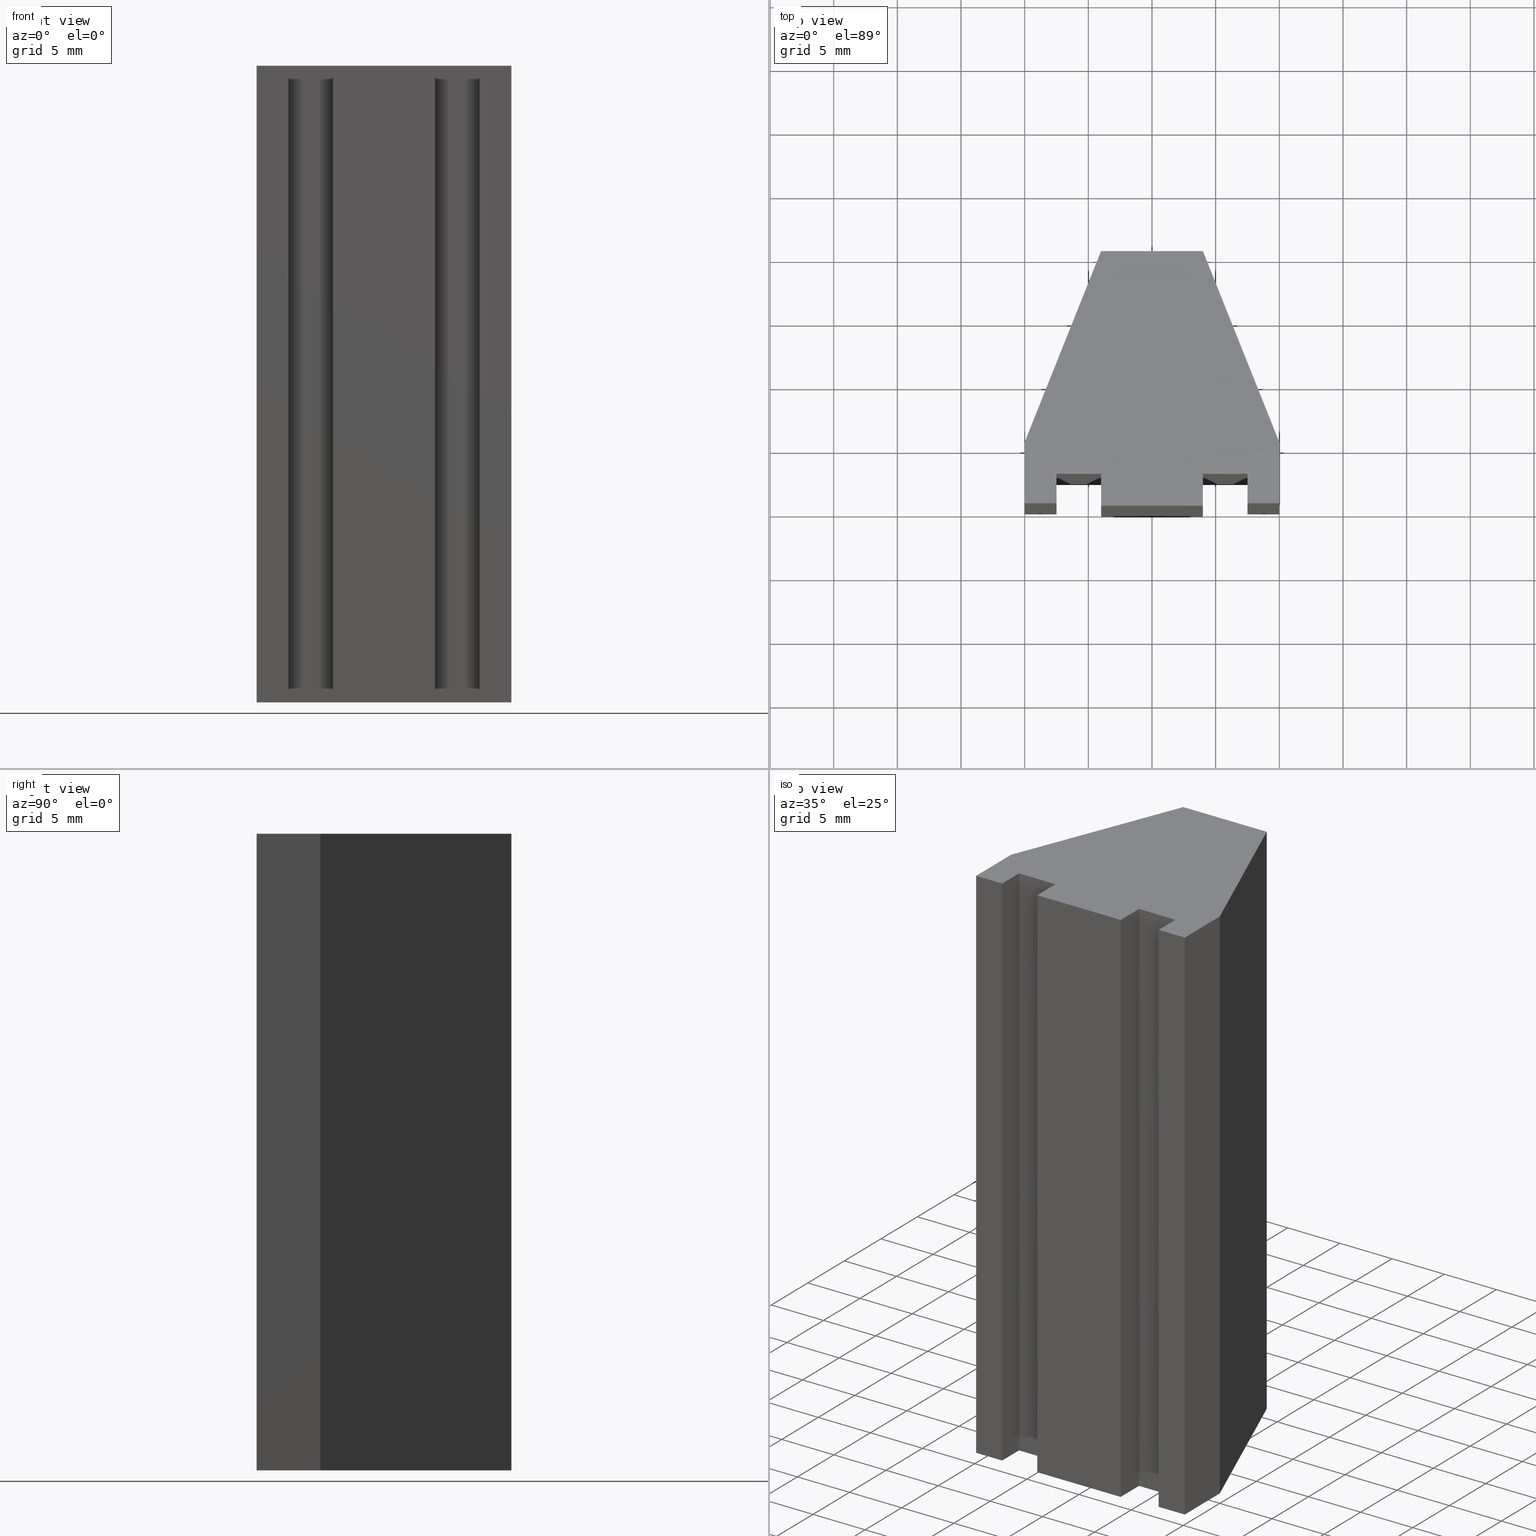
[diagram: canonical four-view strip — front | top / right | iso, engineering-drawing reading convention]
A machine part, canonical four-view strip (front | top / right | iso — engineering-drawing reading convention). The complete STEP part file that produces these views, byte-faithful:
ISO-10303-21;
HEADER;
/* Generated by software containing ST-Developer
 * from STEP Tools, Inc. (www.steptools.com) 
 */

FILE_DESCRIPTION(
/* description */ ('WKZ-0460'),
/* implementation_level */ '2;1');

FILE_NAME(
/* name */ 
'H:\\Eigene Dateien\\CAD Workspace Vault\\CAD\\E_3_Nocken\\E_3_01_Aufs
chwei\X\DFnocke\\06_Trapez\\E_3_01_06_07_00_WKZ-0460.stp',
/* time_stamp */ '2024-06-28T12:50:55+02:00',
/* author */ ('DFischer'),
/* organization */ (''),
/* preprocessor_version */ 'ST-DEVELOPER v18.1',
/* originating_system */ 'Autodesk Inventor 2021',
/* authorisation */ '');

FILE_SCHEMA (('AUTOMOTIVE_DESIGN { 1 0 10303 214 3 1 1 }'));
ENDSEC;

DATA;
#10=MECHANICAL_DESIGN_GEOMETRIC_PRESENTATION_REPRESENTATION('',(#13),#519);
#11=SHAPE_REPRESENTATION_RELATIONSHIP('SRR','None',#526,#12);
#12=ADVANCED_BREP_SHAPE_REPRESENTATION('',(#14),#518);
#13=STYLED_ITEM('',(#535),#14);
#14=MANIFOLD_SOLID_BREP('Volumenk\X\F6rper1',#317);
#15=FACE_OUTER_BOUND('',#31,.T.);
#16=FACE_OUTER_BOUND('',#32,.T.);
#17=FACE_OUTER_BOUND('',#33,.T.);
#18=FACE_OUTER_BOUND('',#34,.T.);
#19=FACE_OUTER_BOUND('',#35,.T.);
#20=FACE_OUTER_BOUND('',#36,.T.);
#21=FACE_OUTER_BOUND('',#37,.T.);
#22=FACE_OUTER_BOUND('',#38,.T.);
#23=FACE_OUTER_BOUND('',#39,.T.);
#24=FACE_OUTER_BOUND('',#40,.T.);
#25=FACE_OUTER_BOUND('',#41,.T.);
#26=FACE_OUTER_BOUND('',#42,.T.);
#27=FACE_OUTER_BOUND('',#43,.T.);
#28=FACE_OUTER_BOUND('',#44,.T.);
#29=FACE_OUTER_BOUND('',#45,.T.);
#30=FACE_OUTER_BOUND('',#46,.T.);
#31=EDGE_LOOP('',(#201,#202,#203,#204));
#32=EDGE_LOOP('',(#205,#206,#207,#208));
#33=EDGE_LOOP('',(#209,#210,#211,#212));
#34=EDGE_LOOP('',(#213,#214,#215,#216));
#35=EDGE_LOOP('',(#217,#218,#219,#220));
#36=EDGE_LOOP('',(#221,#222,#223,#224));
#37=EDGE_LOOP('',(#225,#226,#227,#228));
#38=EDGE_LOOP('',(#229,#230,#231,#232));
#39=EDGE_LOOP('',(#233,#234,#235,#236));
#40=EDGE_LOOP('',(#237,#238,#239,#240));
#41=EDGE_LOOP('',(#241,#242,#243,#244));
#42=EDGE_LOOP('',(#245,#246,#247,#248));
#43=EDGE_LOOP('',(#249,#250,#251,#252));
#44=EDGE_LOOP('',(#253,#254,#255,#256));
#45=EDGE_LOOP('',(#257,#258,#259,#260,#261,#262,#263,#264,#265,#266,#267,
#268,#269,#270));
#46=EDGE_LOOP('',(#271,#272,#273,#274,#275,#276,#277,#278,#279,#280,#281,
#282,#283,#284));
#47=LINE('',#433,#89);
#48=LINE('',#435,#90);
#49=LINE('',#437,#91);
#50=LINE('',#438,#92);
#51=LINE('',#441,#93);
#52=LINE('',#443,#94);
#53=LINE('',#444,#95);
#54=LINE('',#447,#96);
#55=LINE('',#449,#97);
#56=LINE('',#450,#98);
#57=LINE('',#453,#99);
#58=LINE('',#455,#100);
#59=LINE('',#456,#101);
#60=LINE('',#459,#102);
#61=LINE('',#461,#103);
#62=LINE('',#462,#104);
#63=LINE('',#465,#105);
#64=LINE('',#467,#106);
#65=LINE('',#468,#107);
#66=LINE('',#471,#108);
#67=LINE('',#473,#109);
#68=LINE('',#474,#110);
#69=LINE('',#477,#111);
#70=LINE('',#479,#112);
#71=LINE('',#480,#113);
#72=LINE('',#483,#114);
#73=LINE('',#485,#115);
#74=LINE('',#486,#116);
#75=LINE('',#489,#117);
#76=LINE('',#491,#118);
#77=LINE('',#492,#119);
#78=LINE('',#495,#120);
#79=LINE('',#497,#121);
#80=LINE('',#498,#122);
#81=LINE('',#501,#123);
#82=LINE('',#503,#124);
#83=LINE('',#504,#125);
#84=LINE('',#507,#126);
#85=LINE('',#509,#127);
#86=LINE('',#510,#128);
#87=LINE('',#512,#129);
#88=LINE('',#513,#130);
#89=VECTOR('',#357,10.);
#90=VECTOR('',#358,10.);
#91=VECTOR('',#359,10.);
#92=VECTOR('',#360,10.);
#93=VECTOR('',#363,10.);
#94=VECTOR('',#364,10.);
#95=VECTOR('',#365,10.);
#96=VECTOR('',#368,10.);
#97=VECTOR('',#369,10.);
#98=VECTOR('',#370,10.);
#99=VECTOR('',#373,10.);
#100=VECTOR('',#374,10.);
#101=VECTOR('',#375,10.);
#102=VECTOR('',#378,10.);
#103=VECTOR('',#379,10.);
#104=VECTOR('',#380,10.);
#105=VECTOR('',#383,10.);
#106=VECTOR('',#384,10.);
#107=VECTOR('',#385,10.);
#108=VECTOR('',#388,10.);
#109=VECTOR('',#389,10.);
#110=VECTOR('',#390,10.);
#111=VECTOR('',#393,10.);
#112=VECTOR('',#394,10.);
#113=VECTOR('',#395,10.);
#114=VECTOR('',#398,10.);
#115=VECTOR('',#399,10.);
#116=VECTOR('',#400,10.);
#117=VECTOR('',#403,10.);
#118=VECTOR('',#404,10.);
#119=VECTOR('',#405,10.);
#120=VECTOR('',#408,10.);
#121=VECTOR('',#409,10.);
#122=VECTOR('',#410,10.);
#123=VECTOR('',#413,10.);
#124=VECTOR('',#414,10.);
#125=VECTOR('',#415,10.);
#126=VECTOR('',#418,10.);
#127=VECTOR('',#419,10.);
#128=VECTOR('',#420,10.);
#129=VECTOR('',#423,10.);
#130=VECTOR('',#424,10.);
#131=VERTEX_POINT('',#431);
#132=VERTEX_POINT('',#432);
#133=VERTEX_POINT('',#434);
#134=VERTEX_POINT('',#436);
#135=VERTEX_POINT('',#440);
#136=VERTEX_POINT('',#442);
#137=VERTEX_POINT('',#446);
#138=VERTEX_POINT('',#448);
#139=VERTEX_POINT('',#452);
#140=VERTEX_POINT('',#454);
#141=VERTEX_POINT('',#458);
#142=VERTEX_POINT('',#460);
#143=VERTEX_POINT('',#464);
#144=VERTEX_POINT('',#466);
#145=VERTEX_POINT('',#470);
#146=VERTEX_POINT('',#472);
#147=VERTEX_POINT('',#476);
#148=VERTEX_POINT('',#478);
#149=VERTEX_POINT('',#482);
#150=VERTEX_POINT('',#484);
#151=VERTEX_POINT('',#488);
#152=VERTEX_POINT('',#490);
#153=VERTEX_POINT('',#494);
#154=VERTEX_POINT('',#496);
#155=VERTEX_POINT('',#500);
#156=VERTEX_POINT('',#502);
#157=VERTEX_POINT('',#506);
#158=VERTEX_POINT('',#508);
#159=EDGE_CURVE('',#131,#132,#47,.T.);
#160=EDGE_CURVE('',#131,#133,#48,.T.);
#161=EDGE_CURVE('',#134,#133,#49,.T.);
#162=EDGE_CURVE('',#132,#134,#50,.T.);
#163=EDGE_CURVE('',#132,#135,#51,.T.);
#164=EDGE_CURVE('',#136,#134,#52,.T.);
#165=EDGE_CURVE('',#135,#136,#53,.T.);
#166=EDGE_CURVE('',#135,#137,#54,.T.);
#167=EDGE_CURVE('',#138,#136,#55,.T.);
#168=EDGE_CURVE('',#137,#138,#56,.T.);
#169=EDGE_CURVE('',#137,#139,#57,.T.);
#170=EDGE_CURVE('',#140,#138,#58,.T.);
#171=EDGE_CURVE('',#139,#140,#59,.T.);
#172=EDGE_CURVE('',#139,#141,#60,.T.);
#173=EDGE_CURVE('',#142,#140,#61,.T.);
#174=EDGE_CURVE('',#141,#142,#62,.T.);
#175=EDGE_CURVE('',#141,#143,#63,.T.);
#176=EDGE_CURVE('',#144,#142,#64,.T.);
#177=EDGE_CURVE('',#143,#144,#65,.T.);
#178=EDGE_CURVE('',#143,#145,#66,.T.);
#179=EDGE_CURVE('',#146,#144,#67,.T.);
#180=EDGE_CURVE('',#145,#146,#68,.T.);
#181=EDGE_CURVE('',#145,#147,#69,.T.);
#182=EDGE_CURVE('',#148,#146,#70,.T.);
#183=EDGE_CURVE('',#147,#148,#71,.T.);
#184=EDGE_CURVE('',#147,#149,#72,.T.);
#185=EDGE_CURVE('',#150,#148,#73,.T.);
#186=EDGE_CURVE('',#149,#150,#74,.T.);
#187=EDGE_CURVE('',#149,#151,#75,.T.);
#188=EDGE_CURVE('',#152,#150,#76,.T.);
#189=EDGE_CURVE('',#151,#152,#77,.T.);
#190=EDGE_CURVE('',#151,#153,#78,.T.);
#191=EDGE_CURVE('',#154,#152,#79,.T.);
#192=EDGE_CURVE('',#153,#154,#80,.T.);
#193=EDGE_CURVE('',#153,#155,#81,.T.);
#194=EDGE_CURVE('',#156,#154,#82,.T.);
#195=EDGE_CURVE('',#155,#156,#83,.T.);
#196=EDGE_CURVE('',#155,#157,#84,.T.);
#197=EDGE_CURVE('',#158,#156,#85,.T.);
#198=EDGE_CURVE('',#157,#158,#86,.T.);
#199=EDGE_CURVE('',#157,#131,#87,.T.);
#200=EDGE_CURVE('',#133,#158,#88,.T.);
#201=ORIENTED_EDGE('',*,*,#159,.F.);
#202=ORIENTED_EDGE('',*,*,#160,.T.);
#203=ORIENTED_EDGE('',*,*,#161,.F.);
#204=ORIENTED_EDGE('',*,*,#162,.F.);
#205=ORIENTED_EDGE('',*,*,#163,.F.);
#206=ORIENTED_EDGE('',*,*,#162,.T.);
#207=ORIENTED_EDGE('',*,*,#164,.F.);
#208=ORIENTED_EDGE('',*,*,#165,.F.);
#209=ORIENTED_EDGE('',*,*,#166,.F.);
#210=ORIENTED_EDGE('',*,*,#165,.T.);
#211=ORIENTED_EDGE('',*,*,#167,.F.);
#212=ORIENTED_EDGE('',*,*,#168,.F.);
#213=ORIENTED_EDGE('',*,*,#169,.F.);
#214=ORIENTED_EDGE('',*,*,#168,.T.);
#215=ORIENTED_EDGE('',*,*,#170,.F.);
#216=ORIENTED_EDGE('',*,*,#171,.F.);
#217=ORIENTED_EDGE('',*,*,#172,.F.);
#218=ORIENTED_EDGE('',*,*,#171,.T.);
#219=ORIENTED_EDGE('',*,*,#173,.F.);
#220=ORIENTED_EDGE('',*,*,#174,.F.);
#221=ORIENTED_EDGE('',*,*,#175,.F.);
#222=ORIENTED_EDGE('',*,*,#174,.T.);
#223=ORIENTED_EDGE('',*,*,#176,.F.);
#224=ORIENTED_EDGE('',*,*,#177,.F.);
#225=ORIENTED_EDGE('',*,*,#178,.F.);
#226=ORIENTED_EDGE('',*,*,#177,.T.);
#227=ORIENTED_EDGE('',*,*,#179,.F.);
#228=ORIENTED_EDGE('',*,*,#180,.F.);
#229=ORIENTED_EDGE('',*,*,#181,.F.);
#230=ORIENTED_EDGE('',*,*,#180,.T.);
#231=ORIENTED_EDGE('',*,*,#182,.F.);
#232=ORIENTED_EDGE('',*,*,#183,.F.);
#233=ORIENTED_EDGE('',*,*,#184,.F.);
#234=ORIENTED_EDGE('',*,*,#183,.T.);
#235=ORIENTED_EDGE('',*,*,#185,.F.);
#236=ORIENTED_EDGE('',*,*,#186,.F.);
#237=ORIENTED_EDGE('',*,*,#187,.F.);
#238=ORIENTED_EDGE('',*,*,#186,.T.);
#239=ORIENTED_EDGE('',*,*,#188,.F.);
#240=ORIENTED_EDGE('',*,*,#189,.F.);
#241=ORIENTED_EDGE('',*,*,#190,.F.);
#242=ORIENTED_EDGE('',*,*,#189,.T.);
#243=ORIENTED_EDGE('',*,*,#191,.F.);
#244=ORIENTED_EDGE('',*,*,#192,.F.);
#245=ORIENTED_EDGE('',*,*,#193,.F.);
#246=ORIENTED_EDGE('',*,*,#192,.T.);
#247=ORIENTED_EDGE('',*,*,#194,.F.);
#248=ORIENTED_EDGE('',*,*,#195,.F.);
#249=ORIENTED_EDGE('',*,*,#196,.F.);
#250=ORIENTED_EDGE('',*,*,#195,.T.);
#251=ORIENTED_EDGE('',*,*,#197,.F.);
#252=ORIENTED_EDGE('',*,*,#198,.F.);
#253=ORIENTED_EDGE('',*,*,#199,.F.);
#254=ORIENTED_EDGE('',*,*,#198,.T.);
#255=ORIENTED_EDGE('',*,*,#200,.F.);
#256=ORIENTED_EDGE('',*,*,#160,.F.);
#257=ORIENTED_EDGE('',*,*,#199,.T.);
#258=ORIENTED_EDGE('',*,*,#159,.T.);
#259=ORIENTED_EDGE('',*,*,#163,.T.);
#260=ORIENTED_EDGE('',*,*,#166,.T.);
#261=ORIENTED_EDGE('',*,*,#169,.T.);
#262=ORIENTED_EDGE('',*,*,#172,.T.);
#263=ORIENTED_EDGE('',*,*,#175,.T.);
#264=ORIENTED_EDGE('',*,*,#178,.T.);
#265=ORIENTED_EDGE('',*,*,#181,.T.);
#266=ORIENTED_EDGE('',*,*,#184,.T.);
#267=ORIENTED_EDGE('',*,*,#187,.T.);
#268=ORIENTED_EDGE('',*,*,#190,.T.);
#269=ORIENTED_EDGE('',*,*,#193,.T.);
#270=ORIENTED_EDGE('',*,*,#196,.T.);
#271=ORIENTED_EDGE('',*,*,#200,.T.);
#272=ORIENTED_EDGE('',*,*,#197,.T.);
#273=ORIENTED_EDGE('',*,*,#194,.T.);
#274=ORIENTED_EDGE('',*,*,#191,.T.);
#275=ORIENTED_EDGE('',*,*,#188,.T.);
#276=ORIENTED_EDGE('',*,*,#185,.T.);
#277=ORIENTED_EDGE('',*,*,#182,.T.);
#278=ORIENTED_EDGE('',*,*,#179,.T.);
#279=ORIENTED_EDGE('',*,*,#176,.T.);
#280=ORIENTED_EDGE('',*,*,#173,.T.);
#281=ORIENTED_EDGE('',*,*,#170,.T.);
#282=ORIENTED_EDGE('',*,*,#167,.T.);
#283=ORIENTED_EDGE('',*,*,#164,.T.);
#284=ORIENTED_EDGE('',*,*,#161,.T.);
#285=PLANE('',#337);
#286=PLANE('',#338);
#287=PLANE('',#339);
#288=PLANE('',#340);
#289=PLANE('',#341);
#290=PLANE('',#342);
#291=PLANE('',#343);
#292=PLANE('',#344);
#293=PLANE('',#345);
#294=PLANE('',#346);
#295=PLANE('',#347);
#296=PLANE('',#348);
#297=PLANE('',#349);
#298=PLANE('',#350);
#299=PLANE('',#351);
#300=PLANE('',#352);
#301=ADVANCED_FACE('',(#15),#285,.T.);
#302=ADVANCED_FACE('',(#16),#286,.T.);
#303=ADVANCED_FACE('',(#17),#287,.T.);
#304=ADVANCED_FACE('',(#18),#288,.T.);
#305=ADVANCED_FACE('',(#19),#289,.T.);
#306=ADVANCED_FACE('',(#20),#290,.T.);
#307=ADVANCED_FACE('',(#21),#291,.T.);
#308=ADVANCED_FACE('',(#22),#292,.T.);
#309=ADVANCED_FACE('',(#23),#293,.T.);
#310=ADVANCED_FACE('',(#24),#294,.T.);
#311=ADVANCED_FACE('',(#25),#295,.T.);
#312=ADVANCED_FACE('',(#26),#296,.T.);
#313=ADVANCED_FACE('',(#27),#297,.T.);
#314=ADVANCED_FACE('',(#28),#298,.T.);
#315=ADVANCED_FACE('',(#29),#299,.T.);
#316=ADVANCED_FACE('',(#30),#300,.T.);
#317=CLOSED_SHELL('',(#301,#302,#303,#304,#305,#306,#307,#308,#309,#310,
#311,#312,#313,#314,#315,#316));
#318=DERIVED_UNIT_ELEMENT(#320,1.);
#319=DERIVED_UNIT_ELEMENT(#521,3.);
#320=(
MASS_UNIT()
NAMED_UNIT(*)
SI_UNIT($,.GRAM.)
);
#321=DERIVED_UNIT((#318,#319));
#322=MEASURE_REPRESENTATION_ITEM('density measure',
POSITIVE_RATIO_MEASURE(1.),#321);
#323=PROPERTY_DEFINITION_REPRESENTATION(#328,#325);
#324=PROPERTY_DEFINITION_REPRESENTATION(#329,#326);
#325=REPRESENTATION('material name',(#327),#518);
#326=REPRESENTATION('density',(#322),#518);
#327=DESCRIPTIVE_REPRESENTATION_ITEM('Generisch','Generisch');
#328=PROPERTY_DEFINITION('material property','material name',#528);
#329=PROPERTY_DEFINITION('material property','density of part',#528);
#330=DATE_TIME_ROLE('creation_date');
#331=APPLIED_DATE_AND_TIME_ASSIGNMENT(#332,#330,(#528));
#332=DATE_AND_TIME(#333,#334);
#333=CALENDAR_DATE(2024,6,5);
#334=LOCAL_TIME(0,0,0.,#335);
#335=COORDINATED_UNIVERSAL_TIME_OFFSET(0,0,.BEHIND.);
#336=AXIS2_PLACEMENT_3D('placement',#429,#353,#354);
#337=AXIS2_PLACEMENT_3D('',#430,#355,#356);
#338=AXIS2_PLACEMENT_3D('',#439,#361,#362);
#339=AXIS2_PLACEMENT_3D('',#445,#366,#367);
#340=AXIS2_PLACEMENT_3D('',#451,#371,#372);
#341=AXIS2_PLACEMENT_3D('',#457,#376,#377);
#342=AXIS2_PLACEMENT_3D('',#463,#381,#382);
#343=AXIS2_PLACEMENT_3D('',#469,#386,#387);
#344=AXIS2_PLACEMENT_3D('',#475,#391,#392);
#345=AXIS2_PLACEMENT_3D('',#481,#396,#397);
#346=AXIS2_PLACEMENT_3D('',#487,#401,#402);
#347=AXIS2_PLACEMENT_3D('',#493,#406,#407);
#348=AXIS2_PLACEMENT_3D('',#499,#411,#412);
#349=AXIS2_PLACEMENT_3D('',#505,#416,#417);
#350=AXIS2_PLACEMENT_3D('',#511,#421,#422);
#351=AXIS2_PLACEMENT_3D('',#514,#425,#426);
#352=AXIS2_PLACEMENT_3D('',#515,#427,#428);
#353=DIRECTION('axis',(0.,0.,1.));
#354=DIRECTION('refdir',(1.,0.,0.));
#355=DIRECTION('center_axis',(4.44089209850063E-16,-1.,0.));
#356=DIRECTION('ref_axis',(-1.,-4.44089209850063E-16,0.));
#357=DIRECTION('',(1.,4.44089209850063E-16,0.));
#358=DIRECTION('',(0.,0.,-1.));
#359=DIRECTION('',(-1.,-4.44089209850063E-16,0.));
#360=DIRECTION('',(0.,0.,-1.));
#361=DIRECTION('center_axis',(1.,0.,0.));
#362=DIRECTION('ref_axis',(0.,-1.,0.));
#363=DIRECTION('',(0.,1.,0.));
#364=DIRECTION('',(0.,-1.,0.));
#365=DIRECTION('',(0.,0.,-1.));
#366=DIRECTION('center_axis',(1.58603289232166E-16,-1.,0.));
#367=DIRECTION('ref_axis',(-1.,-1.58603289232166E-16,0.));
#368=DIRECTION('',(1.,1.58603289232166E-16,0.));
#369=DIRECTION('',(-1.,-1.58603289232166E-16,0.));
#370=DIRECTION('',(0.,0.,-1.));
#371=DIRECTION('center_axis',(-1.,0.,0.));
#372=DIRECTION('ref_axis',(0.,1.,0.));
#373=DIRECTION('',(0.,-1.,0.));
#374=DIRECTION('',(0.,1.,0.));
#375=DIRECTION('',(0.,0.,-1.));
#376=DIRECTION('center_axis',(1.38777878078145E-16,-1.,0.));
#377=DIRECTION('ref_axis',(-1.,-1.38777878078145E-16,0.));
#378=DIRECTION('',(1.,1.38777878078145E-16,0.));
#379=DIRECTION('',(-1.,-1.38777878078145E-16,0.));
#380=DIRECTION('',(0.,0.,-1.));
#381=DIRECTION('center_axis',(1.,-1.4210854715202E-14,0.));
#382=DIRECTION('ref_axis',(-1.4210854715202E-14,-1.,0.));
#383=DIRECTION('',(1.4210854715202E-14,1.,0.));
#384=DIRECTION('',(-1.4210854715202E-14,-1.,0.));
#385=DIRECTION('',(0.,0.,-1.));
#386=DIRECTION('center_axis',(0.,-1.,0.));
#387=DIRECTION('ref_axis',(-1.,0.,0.));
#388=DIRECTION('',(1.,0.,0.));
#389=DIRECTION('',(-1.,0.,0.));
#390=DIRECTION('',(0.,0.,-1.));
#391=DIRECTION('center_axis',(-1.,7.72329060608804E-15,0.));
#392=DIRECTION('ref_axis',(7.72329060608804E-15,1.,0.));
#393=DIRECTION('',(-7.72329060608804E-15,-1.,0.));
#394=DIRECTION('',(7.72329060608804E-15,1.,0.));
#395=DIRECTION('',(0.,0.,-1.));
#396=DIRECTION('center_axis',(0.,-1.,0.));
#397=DIRECTION('ref_axis',(-1.,0.,0.));
#398=DIRECTION('',(1.,0.,0.));
#399=DIRECTION('',(-1.,0.,0.));
#400=DIRECTION('',(0.,0.,-1.));
#401=DIRECTION('center_axis',(1.,-4.62592926927149E-16,0.));
#402=DIRECTION('ref_axis',(-4.62592926927149E-16,-1.,0.));
#403=DIRECTION('',(4.62592926927149E-16,1.,0.));
#404=DIRECTION('',(-4.62592926927149E-16,-1.,0.));
#405=DIRECTION('',(0.,0.,-1.));
#406=DIRECTION('center_axis',(0.928476690885259,0.371390676354104,0.));
#407=DIRECTION('ref_axis',(0.371390676354104,-0.928476690885259,0.));
#408=DIRECTION('',(-0.371390676354104,0.928476690885259,0.));
#409=DIRECTION('',(0.371390676354104,-0.928476690885259,0.));
#410=DIRECTION('',(0.,0.,-1.));
#411=DIRECTION('center_axis',(-1.11022302462516E-15,1.,0.));
#412=DIRECTION('ref_axis',(1.,1.11022302462516E-15,0.));
#413=DIRECTION('',(-1.,-1.11022302462516E-15,0.));
#414=DIRECTION('',(1.,1.11022302462516E-15,0.));
#415=DIRECTION('',(0.,0.,-1.));
#416=DIRECTION('center_axis',(-0.928476690885259,0.371390676354104,0.));
#417=DIRECTION('ref_axis',(0.371390676354104,0.928476690885259,0.));
#418=DIRECTION('',(-0.371390676354104,-0.928476690885259,0.));
#419=DIRECTION('',(0.371390676354104,0.928476690885259,0.));
#420=DIRECTION('',(0.,0.,-1.));
#421=DIRECTION('center_axis',(-1.,-2.31296463463574E-16,0.));
#422=DIRECTION('ref_axis',(-2.31296463463574E-16,1.,0.));
#423=DIRECTION('',(2.31296463463574E-16,-1.,0.));
#424=DIRECTION('',(-2.31296463463574E-16,1.,0.));
#425=DIRECTION('center_axis',(0.,0.,1.));
#426=DIRECTION('ref_axis',(1.,0.,0.));
#427=DIRECTION('center_axis',(0.,0.,-1.));
#428=DIRECTION('ref_axis',(-1.,0.,0.));
#429=CARTESIAN_POINT('',(0.,0.,0.));
#430=CARTESIAN_POINT('Origin',(-7.49999999999998,0.200000000000001,0.));
#431=CARTESIAN_POINT('',(-9.99999999999998,0.2,0.));
#432=CARTESIAN_POINT('',(-7.49999999999998,0.200000000000001,0.));
#433=CARTESIAN_POINT('',(-9.99999999999998,0.2,0.));
#434=CARTESIAN_POINT('',(-9.99999999999998,0.2,-50.));
#435=CARTESIAN_POINT('',(-9.99999999999998,0.2,0.));
#436=CARTESIAN_POINT('',(-7.49999999999998,0.200000000000001,-50.));
#437=CARTESIAN_POINT('',(-9.99999999999998,0.2,-50.));
#438=CARTESIAN_POINT('',(-7.49999999999998,0.200000000000001,0.));
#439=CARTESIAN_POINT('Origin',(-7.49999999999998,2.5,0.));
#440=CARTESIAN_POINT('',(-7.49999999999998,2.5,0.));
#441=CARTESIAN_POINT('',(-7.49999999999998,0.200000000000001,0.));
#442=CARTESIAN_POINT('',(-7.49999999999998,2.5,-50.));
#443=CARTESIAN_POINT('',(-7.49999999999998,0.200000000000001,-50.));
#444=CARTESIAN_POINT('',(-7.49999999999998,2.5,0.));
#445=CARTESIAN_POINT('Origin',(-4.,2.5,0.));
#446=CARTESIAN_POINT('',(-4.,2.5,0.));
#447=CARTESIAN_POINT('',(-7.49999999999998,2.5,0.));
#448=CARTESIAN_POINT('',(-4.,2.5,-50.));
#449=CARTESIAN_POINT('',(-7.49999999999998,2.5,-50.));
#450=CARTESIAN_POINT('',(-4.,2.5,0.));
#451=CARTESIAN_POINT('Origin',(-4.,0.,0.));
#452=CARTESIAN_POINT('',(-4.,0.,0.));
#453=CARTESIAN_POINT('',(-4.,2.5,0.));
#454=CARTESIAN_POINT('',(-4.,0.,-50.));
#455=CARTESIAN_POINT('',(-4.,2.5,-50.));
#456=CARTESIAN_POINT('',(-4.,0.,0.));
#457=CARTESIAN_POINT('Origin',(4.,1.11022302462516E-15,0.));
#458=CARTESIAN_POINT('',(4.,1.11022302462516E-15,0.));
#459=CARTESIAN_POINT('',(-4.,0.,0.));
#460=CARTESIAN_POINT('',(4.,1.11022302462516E-15,-50.));
#461=CARTESIAN_POINT('',(-4.,0.,-50.));
#462=CARTESIAN_POINT('',(4.,1.11022302462516E-15,0.));
#463=CARTESIAN_POINT('Origin',(4.00000000000003,2.5,0.));
#464=CARTESIAN_POINT('',(4.00000000000003,2.5,0.));
#465=CARTESIAN_POINT('',(4.,1.11022302462516E-15,0.));
#466=CARTESIAN_POINT('',(4.00000000000003,2.5,-50.));
#467=CARTESIAN_POINT('',(4.,1.11022302462516E-15,-50.));
#468=CARTESIAN_POINT('',(4.00000000000003,2.5,0.));
#469=CARTESIAN_POINT('Origin',(7.50000000000002,2.5,0.));
#470=CARTESIAN_POINT('',(7.50000000000002,2.5,0.));
#471=CARTESIAN_POINT('',(4.00000000000003,2.5,0.));
#472=CARTESIAN_POINT('',(7.50000000000002,2.5,-50.));
#473=CARTESIAN_POINT('',(4.00000000000003,2.5,-50.));
#474=CARTESIAN_POINT('',(7.50000000000002,2.5,0.));
#475=CARTESIAN_POINT('Origin',(7.5,0.200000000000002,0.));
#476=CARTESIAN_POINT('',(7.5,0.200000000000002,0.));
#477=CARTESIAN_POINT('',(7.50000000000002,2.5,0.));
#478=CARTESIAN_POINT('',(7.5,0.200000000000002,-50.));
#479=CARTESIAN_POINT('',(7.50000000000002,2.5,-50.));
#480=CARTESIAN_POINT('',(7.5,0.200000000000002,0.));
#481=CARTESIAN_POINT('Origin',(10.,0.200000000000002,0.));
#482=CARTESIAN_POINT('',(10.,0.200000000000002,0.));
#483=CARTESIAN_POINT('',(7.5,0.200000000000002,0.));
#484=CARTESIAN_POINT('',(10.,0.200000000000002,-50.));
#485=CARTESIAN_POINT('',(7.5,0.200000000000002,-50.));
#486=CARTESIAN_POINT('',(10.,0.200000000000002,0.));
#487=CARTESIAN_POINT('Origin',(10.,5.,0.));
#488=CARTESIAN_POINT('',(10.,5.,0.));
#489=CARTESIAN_POINT('',(10.,0.200000000000002,0.));
#490=CARTESIAN_POINT('',(10.,5.,-50.));
#491=CARTESIAN_POINT('',(10.,0.200000000000002,-50.));
#492=CARTESIAN_POINT('',(10.,5.,0.));
#493=CARTESIAN_POINT('Origin',(4.00000000000001,20.,0.));
#494=CARTESIAN_POINT('',(4.00000000000002,20.,0.));
#495=CARTESIAN_POINT('',(10.,5.,0.));
#496=CARTESIAN_POINT('',(4.00000000000002,20.,-50.));
#497=CARTESIAN_POINT('',(10.,5.,-50.));
#498=CARTESIAN_POINT('',(4.00000000000002,20.,0.));
#499=CARTESIAN_POINT('Origin',(-3.99999999999998,20.,0.));
#500=CARTESIAN_POINT('',(-3.99999999999998,20.,0.));
#501=CARTESIAN_POINT('',(4.00000000000002,20.,0.));
#502=CARTESIAN_POINT('',(-3.99999999999998,20.,-50.));
#503=CARTESIAN_POINT('',(4.00000000000002,20.,-50.));
#504=CARTESIAN_POINT('',(-3.99999999999998,20.,0.));
#505=CARTESIAN_POINT('Origin',(-9.99999999999999,5.,0.));
#506=CARTESIAN_POINT('',(-9.99999999999998,5.,0.));
#507=CARTESIAN_POINT('',(-3.99999999999998,20.,0.));
#508=CARTESIAN_POINT('',(-9.99999999999998,5.,-50.));
#509=CARTESIAN_POINT('',(-3.99999999999998,20.,-50.));
#510=CARTESIAN_POINT('',(-9.99999999999998,5.,0.));
#511=CARTESIAN_POINT('Origin',(-9.99999999999998,0.2,0.));
#512=CARTESIAN_POINT('',(-9.99999999999998,5.,0.));
#513=CARTESIAN_POINT('',(-9.99999999999998,5.,-50.));
#514=CARTESIAN_POINT('Origin',(1.60982338570648E-14,10.,0.));
#515=CARTESIAN_POINT('Origin',(1.66533453693773E-14,10.,-50.));
#516=UNCERTAINTY_MEASURE_WITH_UNIT(LENGTH_MEASURE(0.01),#520,
'DISTANCE_ACCURACY_VALUE',
'Maximum model space distance between geometric entities at asserted c
onnectivities');
#517=UNCERTAINTY_MEASURE_WITH_UNIT(LENGTH_MEASURE(0.01),#520,
'DISTANCE_ACCURACY_VALUE',
'Maximum model space distance between geometric entities at asserted c
onnectivities');
#518=(
GEOMETRIC_REPRESENTATION_CONTEXT(3)
GLOBAL_UNCERTAINTY_ASSIGNED_CONTEXT((#516))
GLOBAL_UNIT_ASSIGNED_CONTEXT((#520,#522,#523))
REPRESENTATION_CONTEXT('','3D')
);
#519=(
GEOMETRIC_REPRESENTATION_CONTEXT(3)
GLOBAL_UNCERTAINTY_ASSIGNED_CONTEXT((#517))
GLOBAL_UNIT_ASSIGNED_CONTEXT((#520,#522,#523))
REPRESENTATION_CONTEXT('','3D')
);
#520=(
LENGTH_UNIT()
NAMED_UNIT(*)
SI_UNIT(.MILLI.,.METRE.)
);
#521=(
LENGTH_UNIT()
NAMED_UNIT(*)
SI_UNIT(.CENTI.,.METRE.)
);
#522=(
NAMED_UNIT(*)
PLANE_ANGLE_UNIT()
SI_UNIT($,.RADIAN.)
);
#523=(
NAMED_UNIT(*)
SI_UNIT($,.STERADIAN.)
SOLID_ANGLE_UNIT()
);
#524=SHAPE_DEFINITION_REPRESENTATION(#525,#526);
#525=PRODUCT_DEFINITION_SHAPE('',$,#528);
#526=SHAPE_REPRESENTATION('',(#336),#518);
#527=PRODUCT_DEFINITION_CONTEXT('part definition',#532,'design');
#528=PRODUCT_DEFINITION('E_3_01_06_07_00_WKZ-0460',
'E_3_01_06_07_00_WKZ-0460',#529,#527);
#529=PRODUCT_DEFINITION_FORMATION('',$,#534);
#530=PRODUCT_RELATED_PRODUCT_CATEGORY('E_3_01_06_07_00_WKZ-0460',
'E_3_01_06_07_00_WKZ-0460',(#534));
#531=APPLICATION_PROTOCOL_DEFINITION('international standard',
'automotive_design',2009,#532);
#532=APPLICATION_CONTEXT(
'Core Data for Automotive Mechanical Design Process');
#533=PRODUCT_CONTEXT('part definition',#532,'mechanical');
#534=PRODUCT('E_3_01_06_07_00_WKZ-0460','E_3_01_06_07_00_WKZ-0460',
'WKZ-0460',(#533));
#535=PRESENTATION_STYLE_ASSIGNMENT((#536));
#536=SURFACE_STYLE_USAGE(.BOTH.,#539);
#537=SURFACE_STYLE_RENDERING_WITH_PROPERTIES($,#543,(#538));
#538=SURFACE_STYLE_TRANSPARENT(0.);
#539=SURFACE_SIDE_STYLE('',(#540,#537));
#540=SURFACE_STYLE_FILL_AREA(#541);
#541=FILL_AREA_STYLE('',(#542));
#542=FILL_AREA_STYLE_COLOUR('',#543);
#543=COLOUR_RGB('',0.749019607843137,0.749019607843137,0.749019607843137);
ENDSEC;
END-ISO-10303-21;
